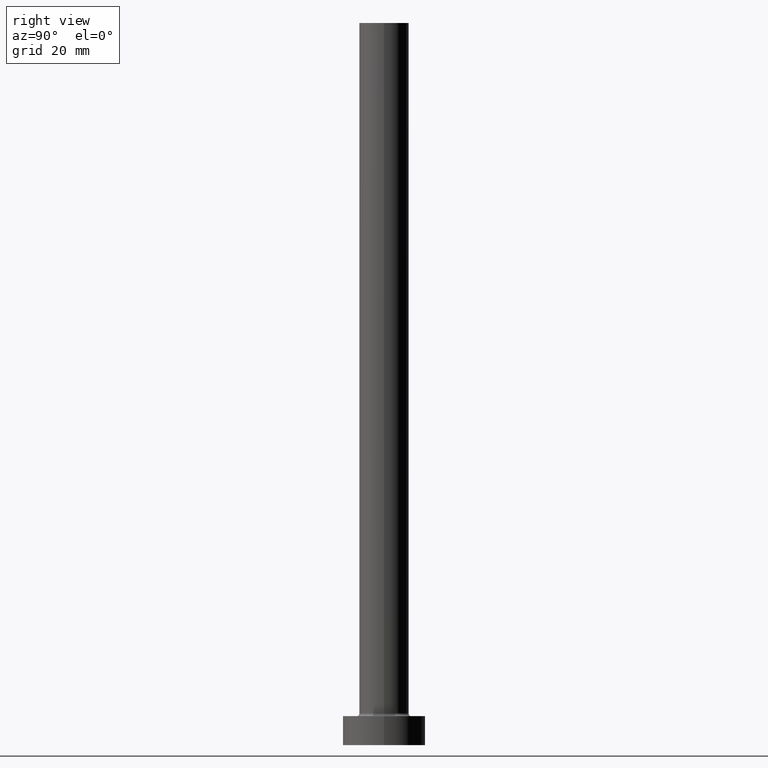
[diagram: clean part render]
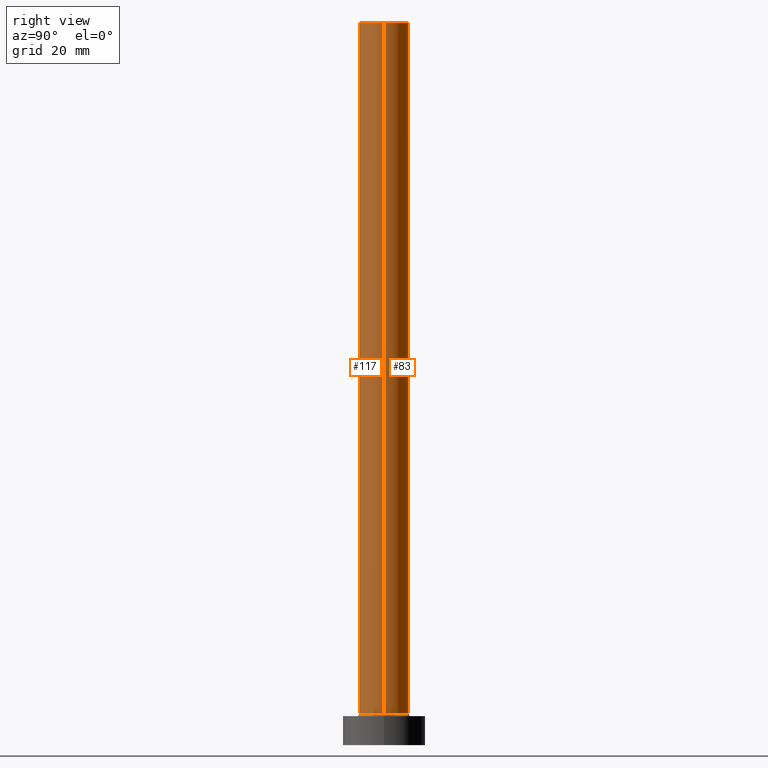
[diagram: same view with one multi-face feature highlighted, each face labeled with its STEP entity id]
A machine part, right view. The highlighted faces form ONE feature: a constant-radius fillet chain: 2 tangent blend faces with common blend radius 6 mm. The faces share edges in the B-rep.
Their STEP definitions:
[1] entity #117 (Cylinder):
#12 = AXIS2_PLACEMENT_3D ( 'NONE', #364, #67, #220 ) ;
#17 = DIRECTION ( 'NONE',  ( -1.000000000000000000, 0.000000000000000000, 0.000000000000000000 ) ) ;
#24 = FACE_OUTER_BOUND ( 'NONE', #398, .T. ) ;
#58 = CIRCLE ( 'NONE', #12, 6.000000000000000888 ) ;
#63 = DIRECTION ( 'NONE',  ( 1.000000000000000000, 0.000000000000000000, 0.000000000000000000 ) ) ;
#65 = ORIENTED_EDGE ( 'NONE', *, *, #212, .T. ) ;
#67 = DIRECTION ( 'NONE',  ( 0.000000000000000000, 0.000000000000000000, 1.000000000000000000 ) ) ;
#73 = VECTOR ( 'NONE', #425, 1000.000000000000000 ) ;
#80 = AXIS2_PLACEMENT_3D ( 'NONE', #81, #164, #17 ) ;
#81 = CARTESIAN_POINT ( 'NONE',  ( 0.000000000000000000, 0.000000000000000000, 175.0000000000000284 ) ) ;
#95 = LINE ( 'NONE', #286, #73 ) ;
#97 = CARTESIAN_POINT ( 'NONE',  ( 6.000000000000000888, 7.347880794884119736E-16, 175.0000000000000284 ) ) ;
#117 = ADVANCED_FACE ( 'NONE', ( #24 ), #239, .T. ) ;
#135 = VERTEX_POINT ( 'NONE', #411 ) ;
#164 = DIRECTION ( 'NONE',  ( -0.000000000000000000, -0.000000000000000000, -1.000000000000000000 ) ) ;
#177 = LINE ( 'NONE', #452, #380 ) ;
#182 = CARTESIAN_POINT ( 'NONE',  ( 6.000000000000000888, 7.347880794884119736E-16, 7.700000000000012612 ) ) ;
#185 = ORIENTED_EDGE ( 'NONE', *, *, #241, .T. ) ;
#212 = EDGE_CURVE ( 'NONE', #135, #320, #177, .T. ) ;
#220 = DIRECTION ( 'NONE',  ( 1.000000000000000000, 0.000000000000000000, 0.000000000000000000 ) ) ;
#222 = ORIENTED_EDGE ( 'NONE', *, *, #354, .F. ) ;
#237 = CIRCLE ( 'NONE', #287, 6.000000000000000888 ) ;
#239 = CYLINDRICAL_SURFACE ( 'NONE', #80, 6.000000000000000888 ) ;
#241 = EDGE_CURVE ( 'NONE', #320, #402, #237, .T. ) ;
#245 = CARTESIAN_POINT ( 'NONE',  ( 0.000000000000000000, 0.000000000000000000, 7.700000000000012612 ) ) ;
#247 = VERTEX_POINT ( 'NONE', #97 ) ;
#282 = CARTESIAN_POINT ( 'NONE',  ( -6.000000000000000888, 0.000000000000000000, 7.700000000000012612 ) ) ;
#286 = CARTESIAN_POINT ( 'NONE',  ( 6.000000000000000888, 7.347880794884119736E-16, 175.0000000000000284 ) ) ;
#287 = AXIS2_PLACEMENT_3D ( 'NONE', #245, #346, #63 ) ;
#311 = DIRECTION ( 'NONE',  ( -0.000000000000000000, -0.000000000000000000, -1.000000000000000000 ) ) ;
#320 = VERTEX_POINT ( 'NONE', #282 ) ;
#346 = DIRECTION ( 'NONE',  ( 0.000000000000000000, 0.000000000000000000, 1.000000000000000000 ) ) ;
#354 = EDGE_CURVE ( 'NONE', #247, #402, #95, .T. ) ;
#364 = CARTESIAN_POINT ( 'NONE',  ( 0.000000000000000000, 0.000000000000000000, 175.0000000000000284 ) ) ;
#380 = VECTOR ( 'NONE', #311, 1000.000000000000000 ) ;
#398 = EDGE_LOOP ( 'NONE', ( #222, #438, #65, #185 ) ) ;
#402 = VERTEX_POINT ( 'NONE', #182 ) ;
#411 = CARTESIAN_POINT ( 'NONE',  ( -6.000000000000000888, 0.000000000000000000, 175.0000000000000284 ) ) ;
#425 = DIRECTION ( 'NONE',  ( -0.000000000000000000, -0.000000000000000000, -1.000000000000000000 ) ) ;
#438 = ORIENTED_EDGE ( 'NONE', *, *, #453, .F. ) ;
#452 = CARTESIAN_POINT ( 'NONE',  ( -6.000000000000000888, 0.000000000000000000, 175.0000000000000284 ) ) ;
#453 = EDGE_CURVE ( 'NONE', #135, #247, #58, .T. ) ;
[2] entity #83 (Cylinder):
#23 = CYLINDRICAL_SURFACE ( 'NONE', #130, 6.000000000000000888 ) ;
#38 = ORIENTED_EDGE ( 'NONE', *, *, #354, .T. ) ;
#57 = CARTESIAN_POINT ( 'NONE',  ( 0.000000000000000000, 0.000000000000000000, 175.0000000000000284 ) ) ;
#73 = VECTOR ( 'NONE', #425, 1000.000000000000000 ) ;
#83 = ADVANCED_FACE ( 'NONE', ( #89 ), #23, .T. ) ;
#89 = FACE_OUTER_BOUND ( 'NONE', #143, .T. ) ;
#95 = LINE ( 'NONE', #286, #73 ) ;
#97 = CARTESIAN_POINT ( 'NONE',  ( 6.000000000000000888, 7.347880794884119736E-16, 175.0000000000000284 ) ) ;
#107 = ORIENTED_EDGE ( 'NONE', *, *, #432, .T. ) ;
#112 = DIRECTION ( 'NONE',  ( 0.000000000000000000, 0.000000000000000000, 1.000000000000000000 ) ) ;
#116 = DIRECTION ( 'NONE',  ( -0.000000000000000000, -0.000000000000000000, -1.000000000000000000 ) ) ;
#127 = CARTESIAN_POINT ( 'NONE',  ( 0.000000000000000000, 0.000000000000000000, 175.0000000000000284 ) ) ;
#130 = AXIS2_PLACEMENT_3D ( 'NONE', #57, #116, #332 ) ;
#135 = VERTEX_POINT ( 'NONE', #411 ) ;
#143 = EDGE_LOOP ( 'NONE', ( #285, #38, #107, #218 ) ) ;
#177 = LINE ( 'NONE', #452, #380 ) ;
#182 = CARTESIAN_POINT ( 'NONE',  ( 6.000000000000000888, 7.347880794884119736E-16, 7.700000000000012612 ) ) ;
#188 = AXIS2_PLACEMENT_3D ( 'NONE', #224, #112, #319 ) ;
#212 = EDGE_CURVE ( 'NONE', #135, #320, #177, .T. ) ;
#218 = ORIENTED_EDGE ( 'NONE', *, *, #212, .F. ) ;
#224 = CARTESIAN_POINT ( 'NONE',  ( 0.000000000000000000, 0.000000000000000000, 7.700000000000012612 ) ) ;
#247 = VERTEX_POINT ( 'NONE', #97 ) ;
#282 = CARTESIAN_POINT ( 'NONE',  ( -6.000000000000000888, 0.000000000000000000, 7.700000000000012612 ) ) ;
#285 = ORIENTED_EDGE ( 'NONE', *, *, #289, .F. ) ;
#286 = CARTESIAN_POINT ( 'NONE',  ( 6.000000000000000888, 7.347880794884119736E-16, 175.0000000000000284 ) ) ;
#289 = EDGE_CURVE ( 'NONE', #247, #135, #420, .T. ) ;
#311 = DIRECTION ( 'NONE',  ( -0.000000000000000000, -0.000000000000000000, -1.000000000000000000 ) ) ;
#315 = CIRCLE ( 'NONE', #188, 6.000000000000000888 ) ;
#318 = DIRECTION ( 'NONE',  ( 1.000000000000000000, 0.000000000000000000, 0.000000000000000000 ) ) ;
#319 = DIRECTION ( 'NONE',  ( 1.000000000000000000, 0.000000000000000000, 0.000000000000000000 ) ) ;
#320 = VERTEX_POINT ( 'NONE', #282 ) ;
#332 = DIRECTION ( 'NONE',  ( -1.000000000000000000, 0.000000000000000000, 0.000000000000000000 ) ) ;
#350 = DIRECTION ( 'NONE',  ( 0.000000000000000000, 0.000000000000000000, 1.000000000000000000 ) ) ;
#354 = EDGE_CURVE ( 'NONE', #247, #402, #95, .T. ) ;
#380 = VECTOR ( 'NONE', #311, 1000.000000000000000 ) ;
#402 = VERTEX_POINT ( 'NONE', #182 ) ;
#411 = CARTESIAN_POINT ( 'NONE',  ( -6.000000000000000888, 0.000000000000000000, 175.0000000000000284 ) ) ;
#420 = CIRCLE ( 'NONE', #443, 6.000000000000000888 ) ;
#425 = DIRECTION ( 'NONE',  ( -0.000000000000000000, -0.000000000000000000, -1.000000000000000000 ) ) ;
#432 = EDGE_CURVE ( 'NONE', #402, #320, #315, .T. ) ;
#443 = AXIS2_PLACEMENT_3D ( 'NONE', #127, #350, #318 ) ;
#452 = CARTESIAN_POINT ( 'NONE',  ( -6.000000000000000888, 0.000000000000000000, 175.0000000000000284 ) ) ;